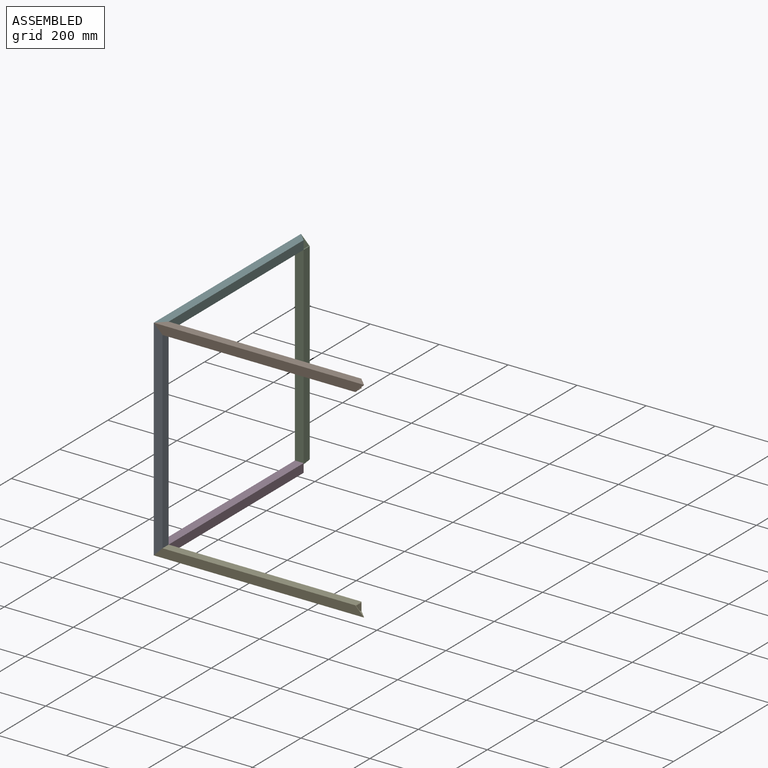
[diagram: assembled view]
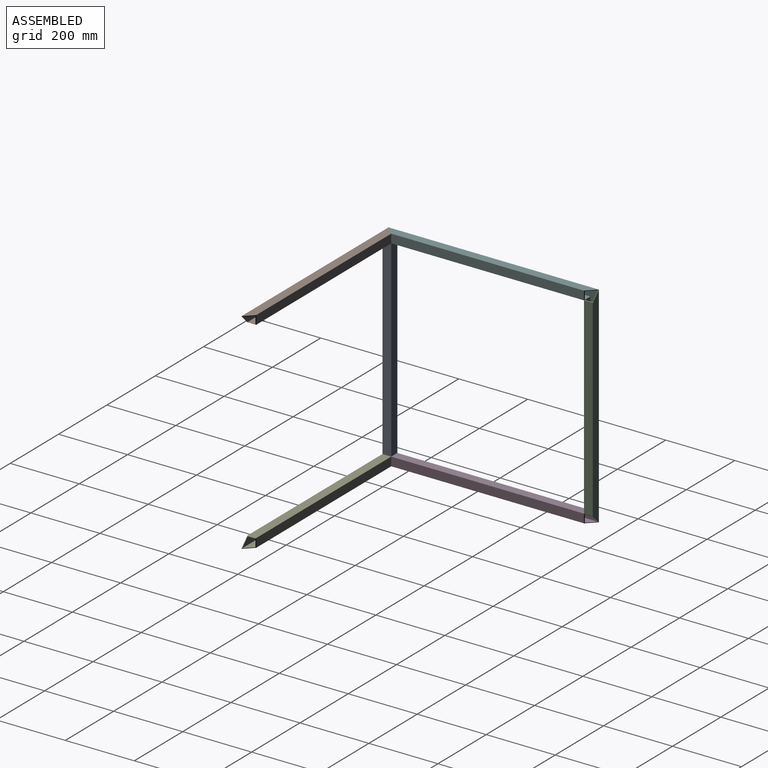
[diagram: assembled view, second angle]
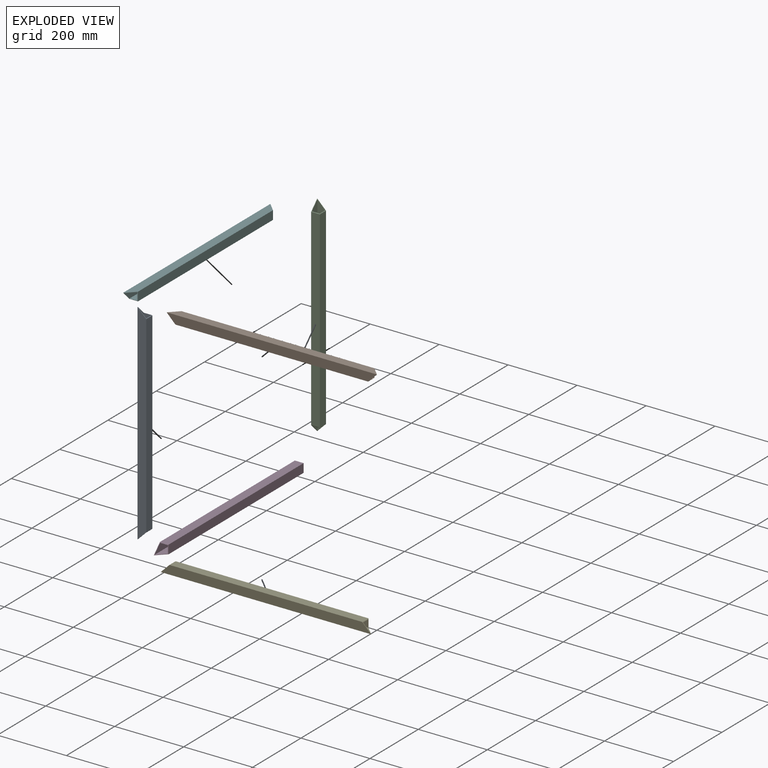
[diagram: exploded view]
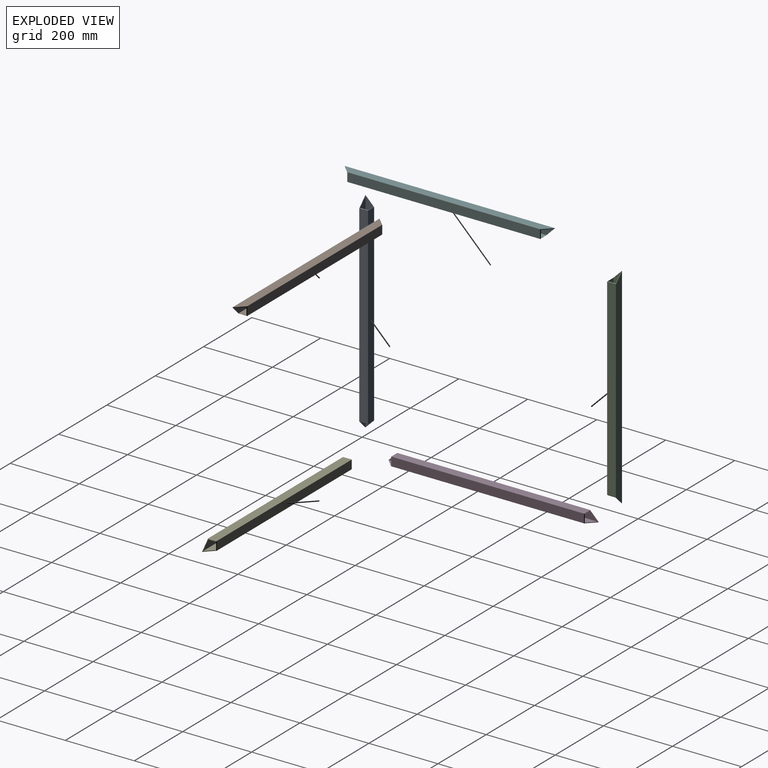
[diagram: exploded view, second angle]
ASSEMBLY  parts=6 mates=5
PART A: 12 faces, bbox 25.4x609.6x25.4 mm
  f0: plane 609.6x25.4mm, normal (1,0,0), area 14838.7mm2, adj f4,f9,f10,f11
  f1: plane 561.29x22.91mm, normal (0,0,-1), area 12859.6mm2, adj f2,f5,f10,f11
  f2: plane 607.11x22.91mm, normal (-1,0,0), area 13384.5mm2, adj f1,f6,f10,f11
  f3: plane 25.4x25.4mm, normal (-0.71,0.71,0), area 85mm2, adj f5,f6,f8,f9,f10
  f4: plane 558.8x25.4mm, normal (0,0,1), area 14193.5mm2, adj f0,f8,f10,f11
  f5: plane 561.29x22.91mm, normal (1,0,0), area 12859.6mm2, adj f1,f3,f6,f7
  f6: plane 607.11x22.91mm, normal (0,0,1), area 13384.5mm2, adj f2,f3,f5,f7
  f7: plane 25.4x25.4mm, normal (-0.71,-0.71,0), area 85mm2, adj f5,f6,f8,f9,f11
  f8: plane 558.8x25.4mm, normal (-1,0,0), area 14193.5mm2, adj f3,f4,f7,f9
  f9: plane 609.6x25.4mm, normal (0,0,-1), area 14838.7mm2, adj f0,f3,f7,f8
  f10: plane 25.4x25.4mm, normal (0,0.71,0.71), area 85mm2, adj f0,f1,f2,f3,f4
  f11: plane 25.4x25.4mm, normal (0,-0.71,0.71), area 85mm2, adj f0,f1,f2,f4,f7
PART B: same geometry as A
PART C: same geometry as A
PART D: same geometry as A
PART E: same geometry as A
PART F: same geometry as A
PLACE A rot(axis=(0,-0.71,-0.71),180deg) t=(-132.7,-532.25,585.56)mm
PLACE B rot(axis=(-0.58,-0.58,-0.58),120deg) t=(464.2,-532.25,572.86)mm
PLACE C rot(axis=(0.58,0.58,0.58),120deg) t=(-132.7,51.95,585.56)mm
PLACE D rot(axis=(0,1,0),90deg) t=(-132.7,64.65,-11.34)mm
PLACE E rot(axis=(0,0,-1),90deg) t=(464.2,-532.25,-11.34)mm
PLACE F rot(axis=(0,-1,0),180deg) t=(-132.7,64.65,572.86)mm
MATE fastened C.f3 <-> F.f10  axis (0,-0.71,0.71) through (-144.16,51.95,572.86)mm
MATE fastened D.f7 <-> A.f11  axis (0,-0.71,0.71) through (-144.16,-532.25,-11.34)mm
MATE fastened D.f3 <-> C.f7  axis (0,0.71,0.71) through (-144.16,51.95,-11.34)mm
MATE fastened A.f3 <-> B.f7  axis (0.71,0,0.71) through (-120,-532.25,560.16)mm
MATE fastened E.f7 <-> D.f11  axis (-0.71,0.71,0) through (-120,-519.55,-11.34)mm
